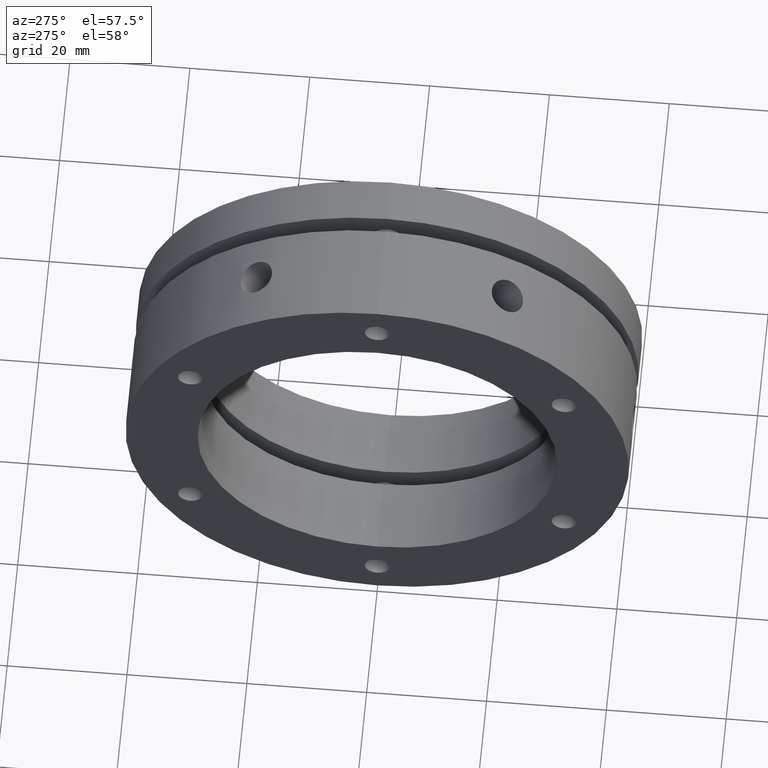
[diagram: clean part render]
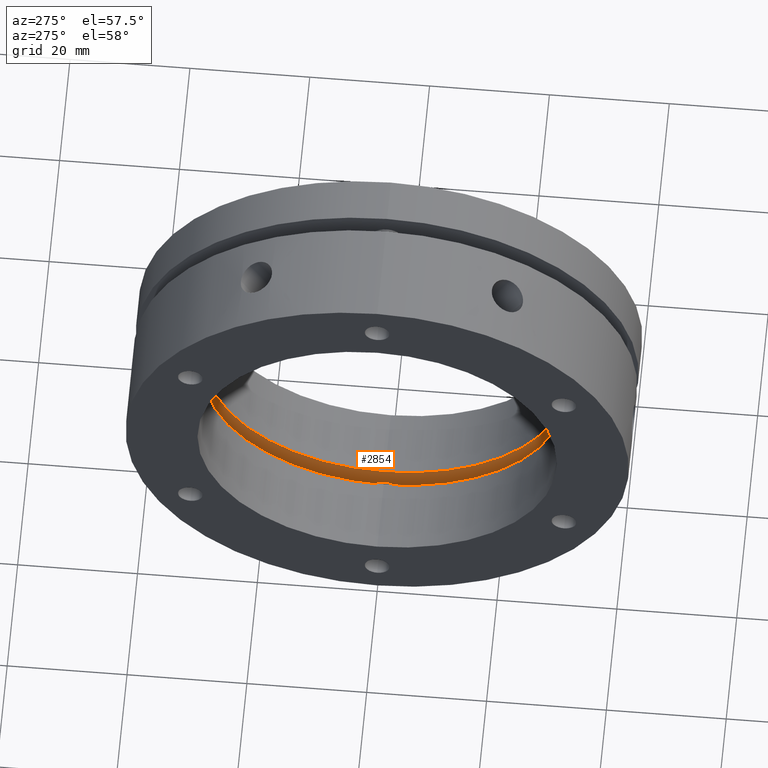
[diagram: same view with one face highlighted and labeled with its STEP entity id]
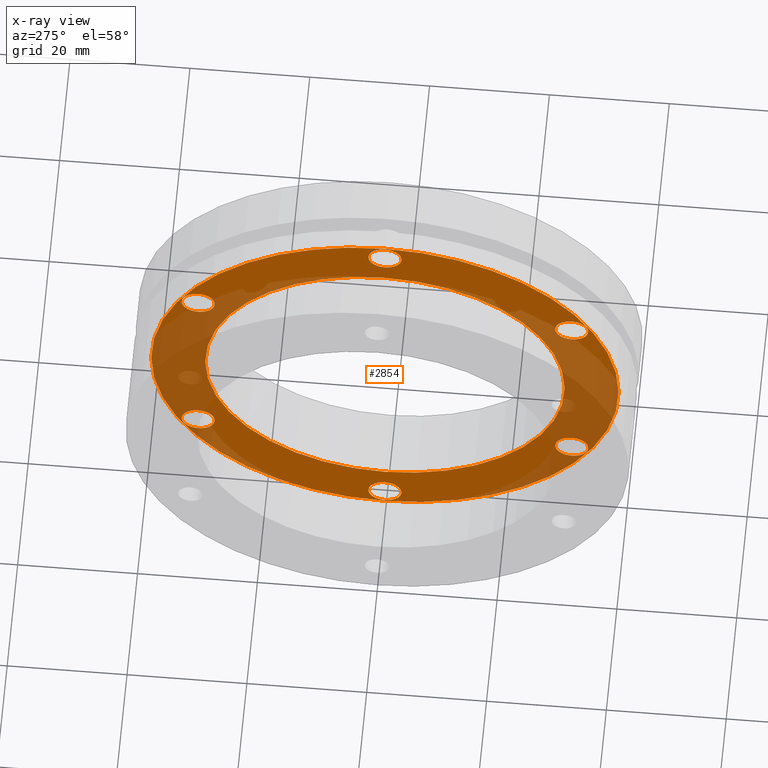
[diagram: x-ray of the same camera — body ghosted, the highlighted face saturated]
A machine part, auxiliary view. The second image highlights one B-rep face of the part: STEP entity #2854.
The next image is the same camera in x-ray: the body ghosted, the highlighted face saturated — about 40% of this face is hidden behind the body in this view.
In plain terms, the highlighted planar face has unit normal (1, 0, 0).
Its self-contained STEP definition (entity closure, byte-faithful):
#88 = VERTEX_POINT ( 'NONE', #3050 ) ;
#89 = VERTEX_POINT ( 'NONE', #3045 ) ;
#95 = VERTEX_POINT ( 'NONE', #3055 ) ;
#99 = VERTEX_POINT ( 'NONE', #3059 ) ;
#101 = VERTEX_POINT ( 'NONE', #3061 ) ;
#103 = VERTEX_POINT ( 'NONE', #3063 ) ;
#104 = VERTEX_POINT ( 'NONE', #3064 ) ;
#106 = VERTEX_POINT ( 'NONE', #3066 ) ;
#107 = VERTEX_POINT ( 'NONE', #3067 ) ;
#576 = EDGE_LOOP ( 'NONE', ( #1280, #1418 ) ) ;
#577 = EDGE_LOOP ( 'NONE', ( #1289, #1288 ) ) ;
#580 = EDGE_LOOP ( 'NONE', ( #1216, #1266 ) ) ;
#590 = EDGE_LOOP ( 'NONE', ( #1447, #1340 ) ) ;
#1117 = EDGE_CURVE ( 'NONE', #1884, #1885, #2020, .T. ) ;
#1147 = EDGE_CURVE ( 'NONE', #103, #99, #2053, .T. ) ;
#1148 = EDGE_CURVE ( 'NONE', #4508, #104, #2048, .T. ) ;
#1149 = EDGE_CURVE ( 'NONE', #89, #106, #2055, .T. ) ;
#1152 = AXIS2_PLACEMENT_3D ( 'NONE', #3318, #3319, #3320 ) ;
#1153 = AXIS2_PLACEMENT_3D ( 'NONE', #3321, #3322, #3323 ) ;
#1158 = AXIS2_PLACEMENT_3D ( 'NONE', #3344, #3345, #3346 ) ;
#1160 = AXIS2_PLACEMENT_3D ( 'NONE', #3357, #3358, #3359 ) ;
#1162 = AXIS2_PLACEMENT_3D ( 'NONE', #3404, #2477, #2480 ) ;
#1165 = AXIS2_PLACEMENT_3D ( 'NONE', #3430, #3431, #3432 ) ;
#1167 = AXIS2_PLACEMENT_3D ( 'NONE', #3513, #3514, #3515 ) ;
#1174 = AXIS2_PLACEMENT_3D ( 'NONE', #3534, #3535, #3536 ) ;
#1177 = AXIS2_PLACEMENT_3D ( 'NONE', #3543, #3544, #3545 ) ;
#1178 = AXIS2_PLACEMENT_3D ( 'NONE', #3546, #3547, #3548 ) ;
#1179 = AXIS2_PLACEMENT_3D ( 'NONE', #3549, #3550, #3551 ) ;
#1216 = ORIENTED_EDGE ( 'NONE', *, *, #2170, .T. ) ;
#1263 = ORIENTED_EDGE ( 'NONE', *, *, #1147, .T. ) ;
#1266 = ORIENTED_EDGE ( 'NONE', *, *, #1506, .T. ) ;
#1270 = ORIENTED_EDGE ( 'NONE', *, *, #2174, .F. ) ;
#1274 = ORIENTED_EDGE ( 'NONE', *, *, #1499, .F. ) ;
#1280 = ORIENTED_EDGE ( 'NONE', *, *, #2173, .T. ) ;
#1283 = ORIENTED_EDGE ( 'NONE', *, *, #1527, .T. ) ;
#1286 = ORIENTED_EDGE ( 'NONE', *, *, #2162, .T. ) ;
#1288 = ORIENTED_EDGE ( 'NONE', *, *, #2175, .F. ) ;
#1289 = ORIENTED_EDGE ( 'NONE', *, *, #1117, .F. ) ;
#1339 = ORIENTED_EDGE ( 'NONE', *, *, #1148, .T. ) ;
#1340 = ORIENTED_EDGE ( 'NONE', *, *, #1533, .T. ) ;
#1418 = ORIENTED_EDGE ( 'NONE', *, *, #1519, .T. ) ;
#1445 = ORIENTED_EDGE ( 'NONE', *, *, #1514, .T. ) ;
#1446 = ORIENTED_EDGE ( 'NONE', *, *, #1505, .T. ) ;
#1447 = ORIENTED_EDGE ( 'NONE', *, *, #1149, .T. ) ;
#1484 = EDGE_LOOP ( 'NONE', ( #1274, #1270 ) ) ;
#1485 = EDGE_LOOP ( 'NONE', ( #1339, #1445 ) ) ;
#1486 = EDGE_LOOP ( 'NONE', ( #1263, #1283 ) ) ;
#1487 = EDGE_LOOP ( 'NONE', ( #1286, #1446 ) ) ;
#1499 = EDGE_CURVE ( 'NONE', #4501, #4500, #2071, .T. ) ;
#1505 = EDGE_CURVE ( 'NONE', #95, #101, #2084, .T. ) ;
#1506 = EDGE_CURVE ( 'NONE', #4505, #4504, #2083, .T. ) ;
#1514 = EDGE_CURVE ( 'NONE', #104, #4508, #2093, .T. ) ;
#1519 = EDGE_CURVE ( 'NONE', #107, #88, #2104, .T. ) ;
#1527 = EDGE_CURVE ( 'NONE', #99, #103, #2117, .T. ) ;
#1533 = EDGE_CURVE ( 'NONE', #106, #89, #2125, .T. ) ;
#1848 = AXIS2_PLACEMENT_3D ( 'NONE', #3911, #3909, #3915 ) ;
#1884 = VERTEX_POINT ( 'NONE', #3452 ) ;
#1885 = VERTEX_POINT ( 'NONE', #3453 ) ;
#2020 = CIRCLE ( 'NONE', #2980, 30.00000000000000000 ) ;
#2048 = CIRCLE ( 'NONE', #3001, 2.749999999999999100 ) ;
#2053 = CIRCLE ( 'NONE', #3000, 2.749999999999999100 ) ;
#2055 = CIRCLE ( 'NONE', #3002, 2.749999999999999100 ) ;
#2071 = CIRCLE ( 'NONE', #3008, 39.00000000000000700 ) ;
#2083 = CIRCLE ( 'NONE', #1153, 2.750000000000000900 ) ;
#2084 = CIRCLE ( 'NONE', #1152, 2.750000000000002700 ) ;
#2093 = CIRCLE ( 'NONE', #1158, 2.749999999999999100 ) ;
#2104 = CIRCLE ( 'NONE', #1160, 2.750000000000002700 ) ;
#2117 = CIRCLE ( 'NONE', #1162, 2.749999999999999100 ) ;
#2125 = CIRCLE ( 'NONE', #1165, 2.749999999999999100 ) ;
#2134 = CIRCLE ( 'NONE', #1167, 2.750000000000002700 ) ;
#2141 = CIRCLE ( 'NONE', #1174, 2.750000000000000900 ) ;
#2143 = CIRCLE ( 'NONE', #1177, 2.750000000000002700 ) ;
#2145 = CIRCLE ( 'NONE', #1178, 39.00000000000000700 ) ;
#2146 = CIRCLE ( 'NONE', #1179, 30.00000000000000000 ) ;
#2162 = EDGE_CURVE ( 'NONE', #101, #95, #2134, .T. ) ;
#2170 = EDGE_CURVE ( 'NONE', #4504, #4505, #2141, .T. ) ;
#2173 = EDGE_CURVE ( 'NONE', #88, #107, #2143, .T. ) ;
#2174 = EDGE_CURVE ( 'NONE', #4500, #4501, #2145, .T. ) ;
#2175 = EDGE_CURVE ( 'NONE', #1885, #1884, #2146, .T. ) ;
#2351 = FACE_BOUND ( 'NONE', #577, .T. ) ;
#2352 = FACE_BOUND ( 'NONE', #590, .T. ) ;
#2353 = FACE_BOUND ( 'NONE', #576, .T. ) ;
#2354 = FACE_BOUND ( 'NONE', #1486, .T. ) ;
#2355 = FACE_BOUND ( 'NONE', #1487, .T. ) ;
#2356 = FACE_BOUND ( 'NONE', #1485, .T. ) ;
#2357 = FACE_BOUND ( 'NONE', #580, .T. ) ;
#2358 = FACE_OUTER_BOUND ( 'NONE', #1484, .T. ) ;
#2477 = DIRECTION ( 'NONE',  ( 1.000000000000000000, 0.0000000000000000000, 0.0000000000000000000 ) ) ;
#2480 = DIRECTION ( 'NONE',  ( 0.0000000000000000000, 0.0000000000000000000, -1.000000000000000000 ) ) ;
#2854 = ADVANCED_FACE ( 'NONE', ( #2351, #2355, #2352, #2354, #2353, #2356, #2357, #2358 ), #3913, .F. ) ;
#2980 = AXIS2_PLACEMENT_3D ( 'NONE', #3193, #3194, #3195 ) ;
#3000 = AXIS2_PLACEMENT_3D ( 'NONE', #3265, #3266, #3267 ) ;
#3001 = AXIS2_PLACEMENT_3D ( 'NONE', #3268, #3269, #3270 ) ;
#3002 = AXIS2_PLACEMENT_3D ( 'NONE', #3272, #3273, #3274 ) ;
#3008 = AXIS2_PLACEMENT_3D ( 'NONE', #3303, #3304, #3305 ) ;
#3045 = CARTESIAN_POINT ( 'NONE',  ( 14.80000000000000400, -31.17691453623980600, 15.25000000000001800 ) ) ;
#3050 = CARTESIAN_POINT ( 'NONE',  ( 14.80000000000000400, -6.661337999999999900E-015, -38.75000000000002800 ) ) ;
#3055 = CARTESIAN_POINT ( 'NONE',  ( 14.80000000000000400, 3.367778697655217600E-016, 38.75000000000002800 ) ) ;
#3059 = CARTESIAN_POINT ( 'NONE',  ( 14.80000000000000400, -31.17691453623981700, -15.25000000000000500 ) ) ;
#3061 = CARTESIAN_POINT ( 'NONE',  ( 14.80000000000000400, 0.0000000000000000000, 33.25000000000002100 ) ) ;
#3063 = CARTESIAN_POINT ( 'NONE',  ( 14.80000000000000400, -31.17691453623981700, -20.75000000000000400 ) ) ;
#3064 = CARTESIAN_POINT ( 'NONE',  ( 14.80000000000000400, 31.17691453623979900, -15.25000000000003000 ) ) ;
#3066 = CARTESIAN_POINT ( 'NONE',  ( 14.80000000000000400, -31.17691453623980600, 20.75000000000001400 ) ) ;
#3067 = CARTESIAN_POINT ( 'NONE',  ( 14.80000000000000400, -6.324560130234478200E-015, -33.25000000000002100 ) ) ;
#3193 = CARTESIAN_POINT ( 'NONE',  ( 14.80000000000000400, 0.0000000000000000000, 0.0000000000000000000 ) ) ;
#3194 = DIRECTION ( 'NONE',  ( -1.000000000000000000, -0.0000000000000000000, -0.0000000000000000000 ) ) ;
#3195 = DIRECTION ( 'NONE',  ( 0.0000000000000000000, 0.0000000000000000000, -1.000000000000000000 ) ) ;
#3265 = CARTESIAN_POINT ( 'NONE',  ( 14.80000000000000400, -31.17691453623981700, -18.00000000000000700 ) ) ;
#3266 = DIRECTION ( 'NONE',  ( 1.000000000000000000, 0.0000000000000000000, 0.0000000000000000000 ) ) ;
#3267 = DIRECTION ( 'NONE',  ( 0.0000000000000000000, 0.0000000000000000000, -1.000000000000000000 ) ) ;
#3268 = CARTESIAN_POINT ( 'NONE',  ( 14.80000000000000400, 31.17691453623979900, -18.00000000000002800 ) ) ;
#3269 = DIRECTION ( 'NONE',  ( 1.000000000000000000, 0.0000000000000000000, 0.0000000000000000000 ) ) ;
#3270 = DIRECTION ( 'NONE',  ( 0.0000000000000000000, 0.0000000000000000000, -1.000000000000000000 ) ) ;
#3272 = CARTESIAN_POINT ( 'NONE',  ( 14.80000000000000400, -31.17691453623980600, 18.00000000000001400 ) ) ;
#3273 = DIRECTION ( 'NONE',  ( 1.000000000000000000, 0.0000000000000000000, 0.0000000000000000000 ) ) ;
#3274 = DIRECTION ( 'NONE',  ( 0.0000000000000000000, 0.0000000000000000000, -1.000000000000000000 ) ) ;
#3303 = CARTESIAN_POINT ( 'NONE',  ( 14.80000000000000100, 0.0000000000000000000, 0.0000000000000000000 ) ) ;
#3304 = DIRECTION ( 'NONE',  ( 1.000000000000000000, -0.0000000000000000000, -0.0000000000000000000 ) ) ;
#3305 = DIRECTION ( 'NONE',  ( 0.0000000000000000000, 0.0000000000000000000, 1.000000000000000000 ) ) ;
#3318 = CARTESIAN_POINT ( 'NONE',  ( 14.80000000000000400, 0.0000000000000000000, 36.00000000000002800 ) ) ;
#3319 = DIRECTION ( 'NONE',  ( 1.000000000000000000, 0.0000000000000000000, 0.0000000000000000000 ) ) ;
#3320 = DIRECTION ( 'NONE',  ( 0.0000000000000000000, 0.0000000000000000000, -1.000000000000000000 ) ) ;
#3321 = CARTESIAN_POINT ( 'NONE',  ( 14.80000000000000400, 31.17691453623983500, 17.99999999999998900 ) ) ;
#3322 = DIRECTION ( 'NONE',  ( 1.000000000000000000, 0.0000000000000000000, 0.0000000000000000000 ) ) ;
#3323 = DIRECTION ( 'NONE',  ( 0.0000000000000000000, 0.0000000000000000000, -1.000000000000000000 ) ) ;
#3344 = CARTESIAN_POINT ( 'NONE',  ( 14.80000000000000400, 31.17691453623979900, -18.00000000000002800 ) ) ;
#3345 = DIRECTION ( 'NONE',  ( 1.000000000000000000, 0.0000000000000000000, 0.0000000000000000000 ) ) ;
#3346 = DIRECTION ( 'NONE',  ( 0.0000000000000000000, 0.0000000000000000000, -1.000000000000000000 ) ) ;
#3357 = CARTESIAN_POINT ( 'NONE',  ( 14.80000000000000400, -6.661337999999999900E-015, -36.00000000000002800 ) ) ;
#3358 = DIRECTION ( 'NONE',  ( 1.000000000000000000, 0.0000000000000000000, 0.0000000000000000000 ) ) ;
#3359 = DIRECTION ( 'NONE',  ( 0.0000000000000000000, 0.0000000000000000000, -1.000000000000000000 ) ) ;
#3404 = CARTESIAN_POINT ( 'NONE',  ( 14.80000000000000400, -31.17691453623981700, -18.00000000000000700 ) ) ;
#3430 = CARTESIAN_POINT ( 'NONE',  ( 14.80000000000000400, -31.17691453623980600, 18.00000000000001400 ) ) ;
#3431 = DIRECTION ( 'NONE',  ( 1.000000000000000000, 0.0000000000000000000, 0.0000000000000000000 ) ) ;
#3432 = DIRECTION ( 'NONE',  ( 0.0000000000000000000, 0.0000000000000000000, -1.000000000000000000 ) ) ;
#3452 = CARTESIAN_POINT ( 'NONE',  ( 14.80000000000000400, 0.0000000000000000000, -30.00000000000000000 ) ) ;
#3453 = CARTESIAN_POINT ( 'NONE',  ( 14.80000000000000400, 3.673940397442059200E-015, 30.00000000000000000 ) ) ;
#3513 = CARTESIAN_POINT ( 'NONE',  ( 14.80000000000000400, 0.0000000000000000000, 36.00000000000002800 ) ) ;
#3514 = DIRECTION ( 'NONE',  ( 1.000000000000000000, 0.0000000000000000000, 0.0000000000000000000 ) ) ;
#3515 = DIRECTION ( 'NONE',  ( 0.0000000000000000000, 0.0000000000000000000, -1.000000000000000000 ) ) ;
#3534 = CARTESIAN_POINT ( 'NONE',  ( 14.80000000000000400, 31.17691453623983500, 17.99999999999998900 ) ) ;
#3535 = DIRECTION ( 'NONE',  ( 1.000000000000000000, 0.0000000000000000000, 0.0000000000000000000 ) ) ;
#3536 = DIRECTION ( 'NONE',  ( 0.0000000000000000000, 0.0000000000000000000, -1.000000000000000000 ) ) ;
#3543 = CARTESIAN_POINT ( 'NONE',  ( 14.80000000000000400, -6.661337999999999900E-015, -36.00000000000002800 ) ) ;
#3544 = DIRECTION ( 'NONE',  ( 1.000000000000000000, 0.0000000000000000000, 0.0000000000000000000 ) ) ;
#3545 = DIRECTION ( 'NONE',  ( 0.0000000000000000000, 0.0000000000000000000, -1.000000000000000000 ) ) ;
#3546 = CARTESIAN_POINT ( 'NONE',  ( 14.80000000000000100, 0.0000000000000000000, 0.0000000000000000000 ) ) ;
#3547 = DIRECTION ( 'NONE',  ( 1.000000000000000000, -0.0000000000000000000, -0.0000000000000000000 ) ) ;
#3548 = DIRECTION ( 'NONE',  ( 0.0000000000000000000, 0.0000000000000000000, 1.000000000000000000 ) ) ;
#3549 = CARTESIAN_POINT ( 'NONE',  ( 14.80000000000000400, 0.0000000000000000000, 0.0000000000000000000 ) ) ;
#3550 = DIRECTION ( 'NONE',  ( -1.000000000000000000, -0.0000000000000000000, -0.0000000000000000000 ) ) ;
#3551 = DIRECTION ( 'NONE',  ( 0.0000000000000000000, 0.0000000000000000000, -1.000000000000000000 ) ) ;
#3909 = DIRECTION ( 'NONE',  ( 1.000000000000000000, -0.0000000000000000000, 0.0000000000000000000 ) ) ;
#3911 = CARTESIAN_POINT ( 'NONE',  ( 14.80000000000000400, 19.50000000000000700, 0.0000000000000000000 ) ) ;
#3913 = PLANE ( 'NONE',  #1848 ) ;
#3915 = DIRECTION ( 'NONE',  ( 0.0000000000000000000, 0.0000000000000000000, -1.000000000000000000 ) ) ;
#4259 = CARTESIAN_POINT ( 'NONE',  ( 14.80000000000000100, 4.776122516674678700E-015, -39.00000000000000700 ) ) ;
#4260 = CARTESIAN_POINT ( 'NONE',  ( 14.80000000000000100, 0.0000000000000000000, 39.00000000000000700 ) ) ;
#4263 = CARTESIAN_POINT ( 'NONE',  ( 14.80000000000000400, 31.17691453623983500, 15.24999999999998800 ) ) ;
#4264 = CARTESIAN_POINT ( 'NONE',  ( 14.80000000000000400, 31.17691453623983500, 20.74999999999998600 ) ) ;
#4267 = CARTESIAN_POINT ( 'NONE',  ( 14.80000000000000400, 31.17691453623979900, -20.75000000000002800 ) ) ;
#4500 = VERTEX_POINT ( 'NONE', #4259 ) ;
#4501 = VERTEX_POINT ( 'NONE', #4260 ) ;
#4504 = VERTEX_POINT ( 'NONE', #4263 ) ;
#4505 = VERTEX_POINT ( 'NONE', #4264 ) ;
#4508 = VERTEX_POINT ( 'NONE', #4267 ) ;